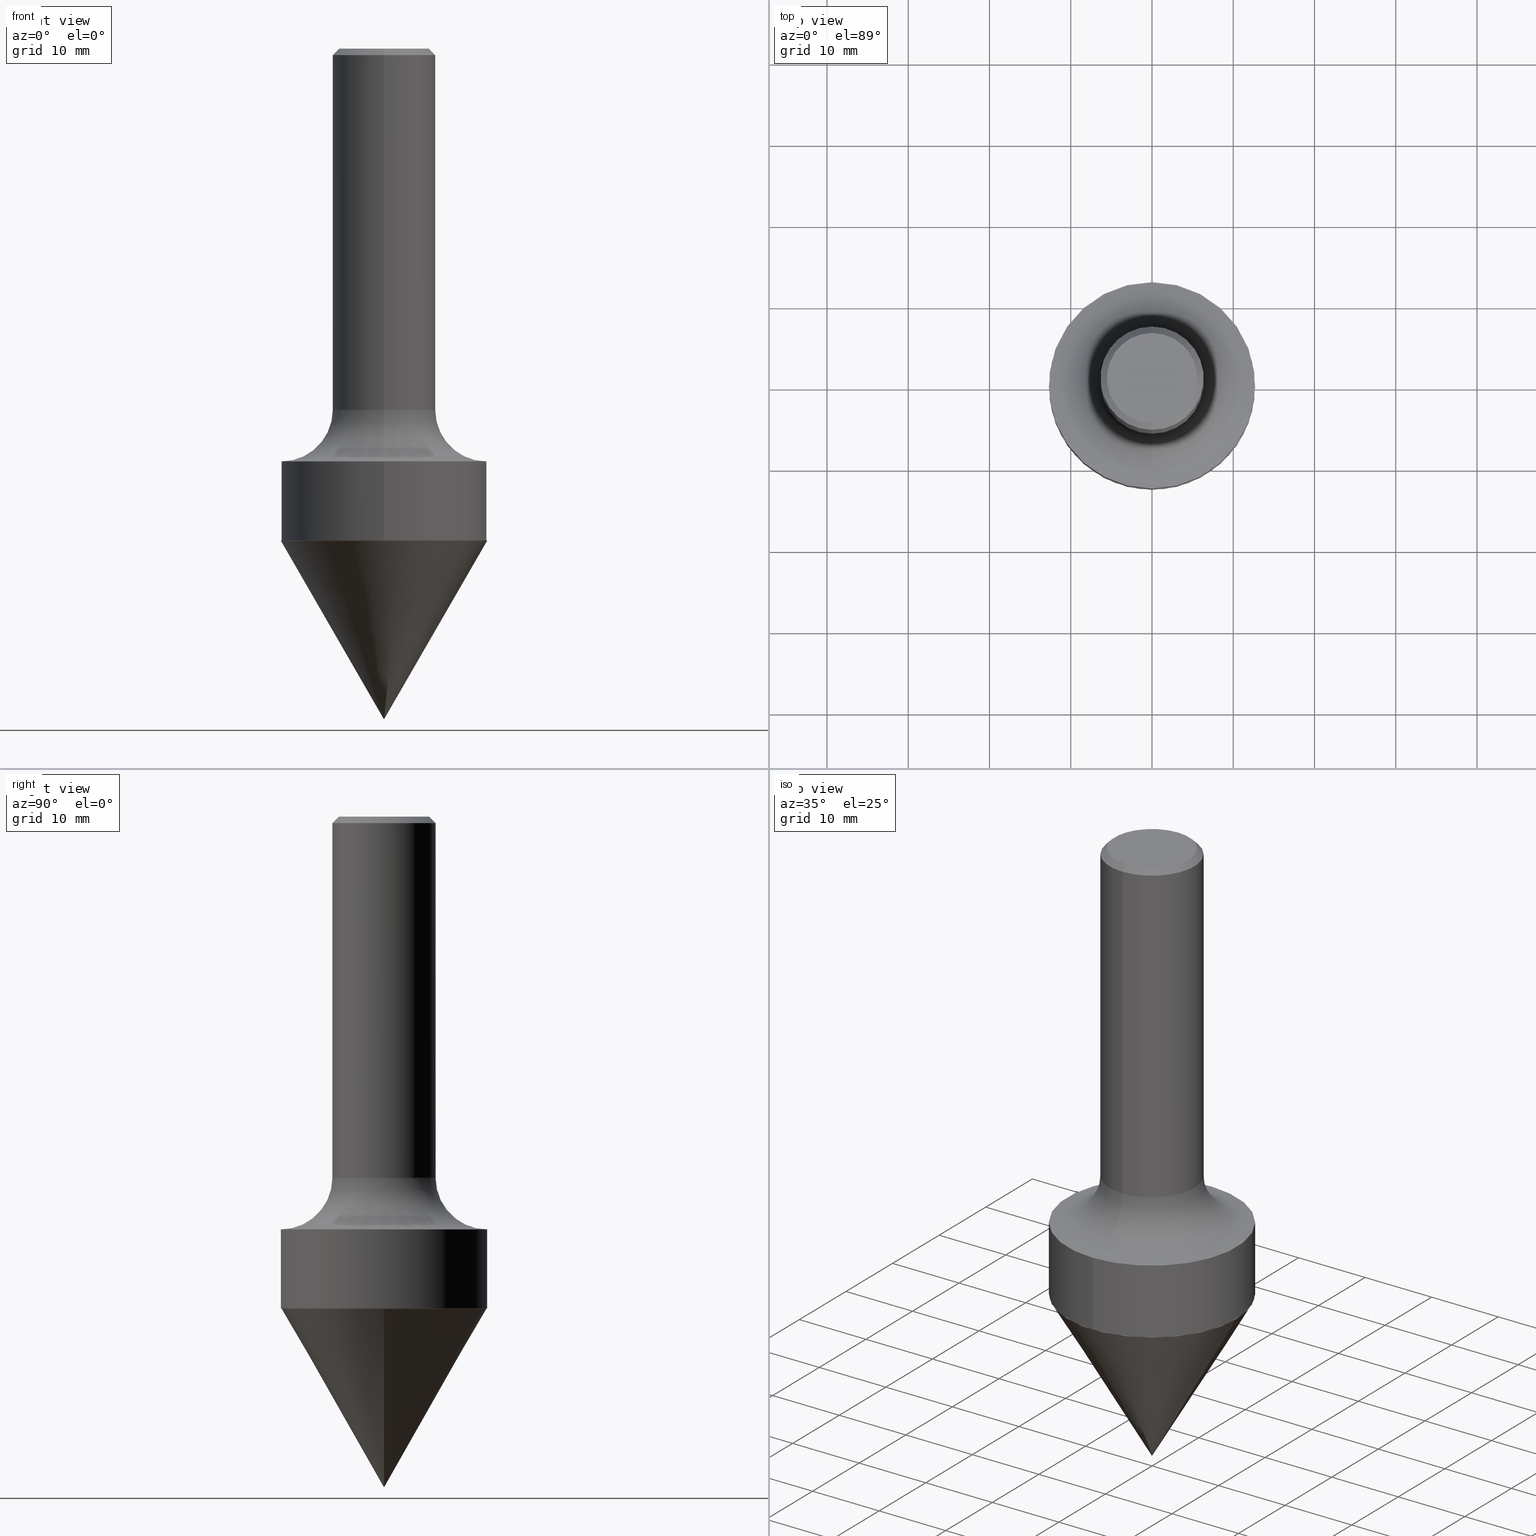
[diagram: canonical four-view strip — front | top / right | iso, engineering-drawing reading convention]
A machine part, canonical four-view strip (front | top / right | iso — engineering-drawing reading convention). The complete STEP part file that produces these views, byte-faithful:
ISO-10303-21;
HEADER;
FILE_DESCRIPTION (( 'STEP AP203' ),
    '1' );
FILE_NAME ('74022.STEP',
    '2024-03-01T13:00:24',
    ( '' ),
    ( '' ),
    'SwSTEP 2.0',
    'SolidWorks 2023',
    '' );
FILE_SCHEMA (( 'CONFIG_CONTROL_DESIGN' ));
ENDSEC;

DATA;
#1 = ORIENTED_EDGE ( 'NONE', *, *, #42, .T. ) ;
#2 = EDGE_CURVE ( 'NONE', #27, #328, #186, .T. ) ;
#3 = DATE_TIME_ROLE ( 'creation_date' ) ;
#4 = CARTESIAN_POINT ( 'NONE',  ( 3.549160965121756040E-15, 0.4994999999999913398, -2.383474596215558350 ) ) ;
#5 = CARTESIAN_POINT ( 'NONE',  ( -3.491481338843089179E-15, -0.5000000000000058842, -1.749999999999998890 ) ) ;
#6 = AXIS2_PLACEMENT_3D ( 'NONE', #378, #36, #453 ) ;
#7 = APPROVAL_ROLE ( '' ) ;
#8 = CONICAL_SURFACE ( 'NONE', #228, 0.4994999999999993889, 0.7853981633977213939 ) ;
#9 = DIRECTION ( 'NONE',  ( 1.000000000000000000, -6.982962677686268288E-15, 0.000000000000000000 ) ) ;
#10 = PERSON_AND_ORGANIZATION ( #142, #138 ) ;
#11 = ORIENTED_EDGE ( 'NONE', *, *, #332, .T. ) ;
#12 = DATE_TIME_ROLE ( 'classification_date' ) ;
#13 = ORIENTED_EDGE ( 'NONE', *, *, #54, .F. ) ;
#14 = CARTESIAN_POINT ( 'NONE',  ( 3.550937321961156489E-15, 0.4994999999999913398, -2.383474596215558350 ) ) ;
#15 = EDGE_CURVE ( 'NONE', #16, #353, #297, .T. ) ;
#16 = VERTEX_POINT ( 'NONE', #158 ) ;
#17 = AXIS2_PLACEMENT_3D ( 'NONE', #418, #339, #77 ) ;
#18 = CARTESIAN_POINT ( 'NONE',  ( 0.4994999999999993889, -1.175126381901434835E-14, -2.383474596215557018 ) ) ;
#19 = DIRECTION ( 'NONE',  ( -6.982962677686265922E-15, -1.000000000000000000, 3.518208477467953618E-15 ) ) ;
#20 = ORIENTED_EDGE ( 'NONE', *, *, #374, .T. ) ;
#21 = EDGE_CURVE ( 'NONE', #194, #415, #477, .T. ) ;
#22 = DIRECTION ( 'NONE',  ( 2.426805345035298041E-29, -3.518208477467954013E-15, -1.000000000000000000 ) ) ;
#23 = CARTESIAN_POINT ( 'NONE',  ( 5.828712775379859309E-29, -8.321857074293319895E-15, -2.383474596215557018 ) ) ;
#24 = LOCAL_TIME ( 8, 0, 24.00000000000000000, #79 ) ;
#25 = DIRECTION ( 'NONE',  ( -2.445468806185136597E-29, 3.491481338843145583E-15, 1.000000000000000000 ) ) ;
#26 = LINE ( 'NONE', #362, #484 ) ;
#27 = VERTEX_POINT ( 'NONE', #114 ) ;
#28 = CARTESIAN_POINT ( 'NONE',  ( 1.527872233877754946E-15, 0.2187999999999999945, -7.630330446570988685E-16 ) ) ;
#29 = ADVANCED_FACE ( 'NONE', ( #386 ), #268, .T. ) ;
#30 = CARTESIAN_POINT ( 'NONE',  ( -3.276658119362871831E-46, 4.750264126824306074E-32, 1.350194042577903107E-17 ) ) ;
#31 = VECTOR ( 'NONE', #152, 39.37007874015748143 ) ;
#32 = DIRECTION ( 'NONE',  ( -2.426805345035298041E-29, 3.518208477467954013E-15, 1.000000000000000000 ) ) ;
#33 = CARTESIAN_POINT ( 'NONE',  ( 5.829935509782950990E-29, -8.323602814962740609E-15, -2.383974596215557185 ) ) ;
#34 = DIRECTION ( 'NONE',  ( -6.982962677686265922E-15, -1.000000000000000000, 3.517254291842738968E-15 ) ) ;
#35 = EDGE_CURVE ( 'NONE', #492, #316, #49, .T. ) ;
#36 = DIRECTION ( 'NONE',  ( -2.426805345035298041E-29, 3.518208477467954013E-15, 1.000000000000000000 ) ) ;
#37 = CIRCLE ( 'NONE', #288, 0.4999999999999997224 ) ;
#38 = AXIS2_PLACEMENT_3D ( 'NONE', #214, #25, #177 ) ;
#39 = CARTESIAN_POINT ( 'NONE',  ( 0.000000000000000000, 0.000000000000000000, 0.000000000000000000 ) ) ;
#40 = ORIENTED_EDGE ( 'NONE', *, *, #486, .F. ) ;
#41 = CYLINDRICAL_SURFACE ( 'NONE', #200, 0.2500000000000001110 ) ;
#42 = EDGE_CURVE ( 'NONE', #204, #393, #74, .T. ) ;
#43 = ORIENTED_EDGE ( 'NONE', *, *, #387, .F. ) ;
#44 = PERSON_AND_ORGANIZATION_ROLE ( 'design_supplier' ) ;
#45 = DIRECTION ( 'NONE',  ( -4.851104656540946920E-15, -0.7071067811865474617, -0.7071067811865475727 ) ) ;
#46 = CARTESIAN_POINT ( 'NONE',  ( 5.784228889851762087E-29, -8.385560530235080975E-15, -2.383474596215557018 ) ) ;
#47 = VERTEX_POINT ( 'NONE', #417 ) ;
#48 = DIRECTION ( 'NONE',  ( 1.000000000000000000, -6.982962677686266711E-15, 0.000000000000000000 ) ) ;
#49 = CIRCLE ( 'NONE', #409, 0.4994999999999993889 ) ;
#50 = PERSON_AND_ORGANIZATION ( #142, #138 ) ;
#51 = CIRCLE ( 'NONE', #155, 0.2500000000000002220 ) ;
#52 = ORIENTED_EDGE ( 'NONE', *, *, #387, .T. ) ;
#53 = CALENDAR_DATE ( 2024, 1, 3 ) ;
#54 = EDGE_CURVE ( 'NONE', #194, #319, #80, .T. ) ;
#55 = TOROIDAL_SURFACE ( 'NONE', #379, 0.4999999999999997780, 0.2499999999999995282 ) ;
#56 = AXIS2_PLACEMENT_3D ( 'NONE', #23, #284, #481 ) ;
#57 = ORIENTED_EDGE ( 'NONE', *, *, #99, .F. ) ;
#58 = DIRECTION ( 'NONE',  ( 2.426805345035297761E-29, -3.518208477467954013E-15, -1.000000000000000000 ) ) ;
#59 = DIRECTION ( 'NONE',  ( -0.4999999999999976685, 6.576425215077956346E-15, 0.8660254037844400399 ) ) ;
#60 = CARTESIAN_POINT ( 'NONE',  ( -1.745740669421525460E-15, -0.2500000000000063283, -1.749999999999999556 ) ) ;
#61 = AXIS2_PLACEMENT_3D ( 'NONE', #39, #190, #491 ) ;
#62 = ORIENTED_EDGE ( 'NONE', *, *, #15, .F. ) ;
#63 = DIRECTION ( 'NONE',  ( -2.426805345035298041E-29, 3.518208477467954013E-15, 1.000000000000000000 ) ) ;
#64 = ADVANCED_FACE ( 'NONE', ( #302 ), #55, .F. ) ;
#65 = DIRECTION ( 'NONE',  ( 2.445468806185136597E-29, -3.491481338843145583E-15, -1.000000000000000000 ) ) ;
#66 = AXIS2_PLACEMENT_3D ( 'NONE', #361, #133, #318 ) ;
#67 = LOCAL_TIME ( 8, 0, 24.00000000000000000, #119 ) ;
#68 = DIRECTION ( 'NONE',  ( 1.000000000000000000, -6.982962677686268288E-15, 0.000000000000000000 ) ) ;
#69 = ORIENTED_EDGE ( 'NONE', *, *, #2, .F. ) ;
#70 = EDGE_CURVE ( 'NONE', #415, #194, #166, .T. ) ;
#71 =( LENGTH_UNIT ( ) NAMED_UNIT ( * ) SI_UNIT ( $, .METRE. ) );
#72 = ORIENTED_EDGE ( 'NONE', *, *, #126, .T. ) ;
#73 = DIRECTION ( 'NONE',  ( -6.982962677686265133E-15, -1.000000000000000000, 3.278217592397113101E-15 ) ) ;
#74 = LINE ( 'NONE', #300, #321 ) ;
#75 = APPROVAL ( #157, 'UNSPECIFIED' ) ;
#76 = CONICAL_SURFACE ( 'NONE', #312, 0.4999999999999996114, 0.5235987755982961511 ) ;
#77 = DIRECTION ( 'NONE',  ( -6.982962677686265922E-15, -1.000000000000000000, 3.281499091488606108E-15 ) ) ;
#78 = ORIENTED_EDGE ( 'NONE', *, *, #90, .F. ) ;
#79 = COORDINATED_UNIVERSAL_TIME_OFFSET ( 5, 0, .BEHIND. ) ;
#80 = LINE ( 'NONE', #4, #31 ) ;
#81 = FACE_OUTER_BOUND ( 'NONE', #406, .T. ) ;
#82 = APPLICATION_PROTOCOL_DEFINITION ( 'international standard', 'config_control_design', 1994, #171 ) ;
#83 = ORIENTED_EDGE ( 'NONE', *, *, #422, .F. ) ;
#84 = CALENDAR_DATE ( 2024, 1, 3 ) ;
#85 = ORIENTED_EDGE ( 'NONE', *, *, #90, .T. ) ;
#86 = VECTOR ( 'NONE', #231, 39.37007874015748143 ) ;
#87 = AXIS2_PLACEMENT_3D ( 'NONE', #287, #439, #217 ) ;
#88 = ADVANCED_FACE ( 'NONE', ( #81 ), #41, .T. ) ;
#89 = COORDINATED_UNIVERSAL_TIME_OFFSET ( 5, 0, .BEHIND. ) ;
#90 = EDGE_CURVE ( 'NONE', #316, #492, #466, .T. ) ;
#91 = CIRCLE ( 'NONE', #303, 0.2499999999999994449 ) ;
#92 = LINE ( 'NONE', #95, #440 ) ;
#93 = CIRCLE ( 'NONE', #488, 0.2500000000000000000 ) ;
#94 = ORIENTED_EDGE ( 'NONE', *, *, #176, .F. ) ;
#95 = CARTESIAN_POINT ( 'NONE',  ( 3.552713678800498563E-15, 0.4999999999999997224, -1.759104238733976217E-15 ) ) ;
#96 = DIRECTION ( 'NONE',  ( -2.445468806185136597E-29, 3.491481338843145583E-15, 1.000000000000000000 ) ) ;
#97 = PLANE ( 'NONE',  #356 ) ;
#98 = MANIFOLD_SOLID_BREP ( 'Body-Move/Copy2[2]', #110 ) ;
#99 = EDGE_CURVE ( 'NONE', #311, #393, #237, .T. ) ;
#100 = CARTESIAN_POINT ( 'NONE',  ( -0.4999999999999996114, -4.832121476119610410E-15, -2.383974596215557185 ) ) ;
#101 = VECTOR ( 'NONE', #334, 39.37007874015748143 ) ;
#102 = CC_DESIGN_SECURITY_CLASSIFICATION ( #253, ( #322 ) ) ;
#103 = CARTESIAN_POINT ( 'NONE',  ( 5.783015487179245881E-29, -8.383801425996346326E-15, -2.382974596215556851 ) ) ;
#104 = DIRECTION ( 'NONE',  ( -6.982962677686265922E-15, -1.000000000000000000, 3.518208477467954013E-15 ) ) ;
#105 = CARTESIAN_POINT ( 'NONE',  ( -0.4994999999999993889, -4.833867216789033491E-15, -2.383474596215557018 ) ) ;
#106 = PRODUCT_DEFINITION ( 'UNKNOWN', '', #322, #469 ) ;
#107 = PLANE ( 'NONE',  #391 ) ;
#108 = EDGE_LOOP ( 'NONE', ( #78, #52, #273, #414 ) ) ;
#109 =( NAMED_UNIT ( * ) PLANE_ANGLE_UNIT ( ) SI_UNIT ( $, .RADIAN. ) );
#110 = CLOSED_SHELL ( 'NONE', ( #88, #261, #116, #289, #310, #64, #269, #352, #232, #248, #225, #189 ) ) ;
#111 = APPROVAL_PERSON_ORGANIZATION ( #165, #367, #125 ) ;
#112 = DIRECTION ( 'NONE',  ( -6.982962677686265133E-15, -1.000000000000000000, 3.278217592397113101E-15 ) ) ;
#113 = DIRECTION ( 'NONE',  ( -6.982962677686265922E-15, -1.000000000000000000, 3.518208477467953618E-15 ) ) ;
#114 = CARTESIAN_POINT ( 'NONE',  ( 2.664535259100420662E-15, 0.2499999999999940603, -1.750000000000001332 ) ) ;
#115 = DIRECTION ( 'NONE',  ( -2.426805345035298041E-29, 3.518208477467954013E-15, 1.000000000000000000 ) ) ;
#116 = ADVANCED_FACE ( 'NONE', ( #383 ), #212, .T. ) ;
#117 = EDGE_LOOP ( 'NONE', ( #360, #396, #168 ) ) ;
#118 = VECTOR ( 'NONE', #122, 39.37007874015748143 ) ;
#119 = COORDINATED_UNIVERSAL_TIME_OFFSET ( 5, 0, .BEHIND. ) ;
#120 = ORIENTED_EDGE ( 'NONE', *, *, #357, .T. ) ;
#121 = DATE_AND_TIME ( #199, #67 ) ;
#122 = DIRECTION ( 'NONE',  ( -4.937700262164884886E-15, -0.7071067811865933139, 0.7071067811865017205 ) ) ;
#123 = APPROVAL_ROLE ( '' ) ;
#124 = ORIENTED_EDGE ( 'NONE', *, *, #399, .F. ) ;
#125 = APPROVAL_ROLE ( '' ) ;
#126 = EDGE_CURVE ( 'NONE', #311, #353, #434, .T. ) ;
#127 = ORIENTED_EDGE ( 'NONE', *, *, #444, .T. ) ;
#128 = DIRECTION ( 'NONE',  ( -2.426805345035298041E-29, 3.518208477467954013E-15, 1.000000000000000000 ) ) ;
#129 = EDGE_CURVE ( 'NONE', #415, #16, #421, .T. ) ;
#130 = EDGE_LOOP ( 'NONE', ( #252, #235, #202, #458 ) ) ;
#131 = DIRECTION ( 'NONE',  ( -6.982962677686265922E-15, -1.000000000000000000, 3.518208477467954407E-15 ) ) ;
#132 = FACE_OUTER_BOUND ( 'NONE', #135, .T. ) ;
#133 = DIRECTION ( 'NONE',  ( -2.426805345035298041E-29, 3.518208477467954013E-15, 1.000000000000000000 ) ) ;
#134 = CC_DESIGN_PERSON_AND_ORGANIZATION_ASSIGNMENT ( #50, #416, ( #322 ) ) ;
#135 = EDGE_LOOP ( 'NONE', ( #373, #309 ) ) ;
#136 = FACE_OUTER_BOUND ( 'NONE', #163, .T. ) ;
#137 = FACE_OUTER_BOUND ( 'NONE', #465, .T. ) ;
#138 = ORGANIZATION ( 'UNSPECIFIED', 'UNSPECIFIED', '' ) ;
#139 = DIRECTION ( 'NONE',  ( -2.426805345035298041E-29, 3.518208477467954013E-15, 1.000000000000000000 ) ) ;
#140 = CC_DESIGN_PERSON_AND_ORGANIZATION_ASSIGNMENT ( #381, #44, ( #322 ) ) ;
#141 = CARTESIAN_POINT ( 'NONE',  ( 7.571632676510179353E-31, -1.097681044970008795E-16, -0.03120000000000020327 ) ) ;
#142 = PERSON ( 'UNSPECIFIED', 'UNSPECIFIED', 'UNSPECIFIED', ('UNSPECIFIED'), ('UNSPECIFIED'), ('UNSPECIFIED') ) ;
#143 = CARTESIAN_POINT ( 'NONE',  ( -1.608100730677646216E-15, -0.2187999999999999945, 7.832859552957674143E-16 ) ) ;
#144 = CARTESIAN_POINT ( 'NONE',  ( 4.246909353811772973E-29, -6.156864835568921297E-15, -1.750000000000000444 ) ) ;
#145 = CARTESIAN_POINT ( 'NONE',  ( 1.776356839400250859E-15, 0.2500000000000001110, -8.795521193669887990E-16 ) ) ;
#146 = DIRECTION ( 'NONE',  ( -2.426805345035298041E-29, 3.518208477467954013E-15, 1.000000000000000000 ) ) ;
#147 = ADVANCED_FACE ( 'NONE', ( #161 ), #107, .F. ) ;
#148 = CARTESIAN_POINT ( 'NONE',  ( -3.491481338843082868E-15, -0.5000000000000067724, -1.999999999999998446 ) ) ;
#149 = DIRECTION ( 'NONE',  ( -2.426805345035298041E-29, 3.518208477467954013E-15, 1.000000000000000000 ) ) ;
#150 = EDGE_LOOP ( 'NONE', ( #429, #40, #338, #20 ) ) ;
#151 = COORDINATED_UNIVERSAL_TIME_OFFSET ( 5, 0, .BEHIND. ) ;
#152 = DIRECTION ( 'NONE',  ( 5.024295867788404755E-15, 0.7071067811865981989, 0.7071067811864968355 ) ) ;
#153 = AXIS2_PLACEMENT_3D ( 'NONE', #325, #172, #358 ) ;
#154 = DIRECTION ( 'NONE',  ( -1.000000000000000000, 6.982962677686265922E-15, -4.883557194083112340E-29 ) ) ;
#155 = AXIS2_PLACEMENT_3D ( 'NONE', #371, #139, #112 ) ;
#156 = ADVANCED_BREP_SHAPE_REPRESENTATION ( '74022', ( #426, #98, #61 ), #260 ) ;
#157 = APPROVAL_STATUS ( 'not_yet_approved' ) ;
#158 = CARTESIAN_POINT ( 'NONE',  ( -3.491481338843073402E-15, -0.5000000000000081046, -2.382974596215555518 ) ) ;
#159 = DATE_AND_TIME ( #53, #375 ) ;
#160 = EDGE_CURVE ( 'NONE', #319, #16, #37, .T. ) ;
#161 = FACE_OUTER_BOUND ( 'NONE', #277, .T. ) ;
#162 = EDGE_LOOP ( 'NONE', ( #380, #368, #351, #62 ) ) ;
#163 = EDGE_LOOP ( 'NONE', ( #13, #355, #227, #198 ) ) ;
#164 = ORIENTED_EDGE ( 'NONE', *, *, #196, .T. ) ;
#165 = PERSON_AND_ORGANIZATION ( #142, #138 ) ;
#166 = CIRCLE ( 'NONE', #17, 0.4994999999999997775 ) ;
#167 = AXIS2_PLACEMENT_3D ( 'NONE', #30, #333, #104 ) ;
#168 = ORIENTED_EDGE ( 'NONE', *, *, #332, .F. ) ;
#169 = DIRECTION ( 'NONE',  ( 6.982962677686265922E-15, 1.000000000000000000, -3.518208477467954013E-15 ) ) ;
#170 = ORIENTED_EDGE ( 'NONE', *, *, #482, .F. ) ;
#171 = APPLICATION_CONTEXT ( 'configuration controlled 3d designs of mechanical parts and assemblies' ) ;
#172 = DIRECTION ( 'NONE',  ( -2.426805345035297761E-29, 3.518208477467954013E-15, 1.000000000000000000 ) ) ;
#173 = AXIS2_PLACEMENT_3D ( 'NONE', #320, #403, #131 ) ;
#174 = FACE_OUTER_BOUND ( 'NONE', #420, .T. ) ;
#175 = CC_DESIGN_APPROVAL ( #367, ( #253 ) ) ;
#176 = EDGE_CURVE ( 'NONE', #246, #226, #401, .T. ) ;
#177 = DIRECTION ( 'NONE',  ( 1.000000000000000000, -6.982962677686268288E-15, 0.000000000000000000 ) ) ;
#178 = CARTESIAN_POINT ( 'NONE',  ( 7.571632676510179353E-31, -1.097681044970008795E-16, -0.03120000000000020327 ) ) ;
#179 = ORIENTED_EDGE ( 'NONE', *, *, #482, .T. ) ;
#180 = ADVANCED_FACE ( 'NONE', ( #222 ), #76, .T. ) ;
#181 = CIRCLE ( 'NONE', #38, 0.4999999999999996114 ) ;
#182 = DIRECTION ( 'NONE',  ( 2.438088387897960049E-29, -3.491481338843145188E-15, -1.000000000000000000 ) ) ;
#183 = DIRECTION ( 'NONE',  ( 4.937700262164529898E-15, 0.7071067811865425767, -0.7071067811865524577 ) ) ;
#184 = FACE_OUTER_BOUND ( 'NONE', #108, .T. ) ;
#185 = APPLICATION_PROTOCOL_DEFINITION ( 'international standard', 'config_control_design', 1994, #471 ) ;
#186 = LINE ( 'NONE', #145, #327 ) ;
#187 = AXIS2_PLACEMENT_3D ( 'NONE', #290, #476, #443 ) ;
#188 = VECTOR ( 'NONE', #445, 39.37007874015748143 ) ;
#189 = ADVANCED_FACE ( 'NONE', ( #363 ), #354, .T. ) ;
#190 = DIRECTION ( 'NONE',  ( 0.000000000000000000, 0.000000000000000000, 1.000000000000000000 ) ) ;
#191 = EDGE_LOOP ( 'NONE', ( #345, #463, #286, #424 ) ) ;
#192 = DIRECTION ( 'NONE',  ( -6.982962677686265922E-15, -1.000000000000000000, 3.518208477467953618E-15 ) ) ;
#193 = SECURITY_CLASSIFICATION_LEVEL ( 'unclassified' ) ;
#194 = VERTEX_POINT ( 'NONE', #14 ) ;
#195 = DIRECTION ( 'NONE',  ( -2.426805345035298041E-29, 3.518208477467954013E-15, 1.000000000000000000 ) ) ;
#196 = EDGE_CURVE ( 'NONE', #492, #226, #468, .T. ) ;
#197 = PERSON_AND_ORGANIZATION_ROLE ( 'creator' ) ;
#198 = ORIENTED_EDGE ( 'NONE', *, *, #160, .F. ) ;
#199 = CALENDAR_DATE ( 2024, 1, 3 ) ;
#200 = AXIS2_PLACEMENT_3D ( 'NONE', #203, #305, #192 ) ;
#201 = APPROVAL_STATUS ( 'not_yet_approved' ) ;
#202 = ORIENTED_EDGE ( 'NONE', *, *, #298, .F. ) ;
#203 = CARTESIAN_POINT ( 'NONE',  ( 0.000000000000000000, 0.000000000000000000, 0.000000000000000000 ) ) ;
#204 = VERTEX_POINT ( 'NONE', #143 ) ;
#205 = ORIENTED_EDGE ( 'NONE', *, *, #281, .T. ) ;
#206 = EDGE_CURVE ( 'NONE', #239, #226, #26, .T. ) ;
#207 = CARTESIAN_POINT ( 'NONE',  ( 4.231879429371815934E-29, -6.178388542817113076E-15, -1.750000000000000444 ) ) ;
#208 = ORIENTED_EDGE ( 'NONE', *, *, #206, .T. ) ;
#209 = FACE_OUTER_BOUND ( 'NONE', #191, .T. ) ;
#210 = EDGE_CURVE ( 'NONE', #319, #470, #92, .T. ) ;
#211 = CARTESIAN_POINT ( 'NONE',  ( 0.4999999999999996114, -1.175385181384850324E-14, -2.383974596215557185 ) ) ;
#212 = CONICAL_SURFACE ( 'NONE', #448, 0.4994999999999997775, 0.7853981633975165577 ) ;
#213 = AXIS2_PLACEMENT_3D ( 'NONE', #207, #285, #438 ) ;
#214 = CARTESIAN_POINT ( 'NONE',  ( 5.829935509782950990E-29, -8.323602814962740609E-15, -2.383974596215557185 ) ) ;
#215 = DIRECTION ( 'NONE',  ( 6.982962677686265922E-15, 1.000000000000000000, -3.517254291842738968E-15 ) ) ;
#216 = EDGE_CURVE ( 'NONE', #27, #470, #91, .T. ) ;
#217 = DIRECTION ( 'NONE',  ( -6.982962677686265922E-15, -1.000000000000000000, 3.281499091488606108E-15 ) ) ;
#218 = ORIENTED_EDGE ( 'NONE', *, *, #21, .F. ) ;
#219 = LINE ( 'NONE', #376, #441 ) ;
#220 = CIRCLE ( 'NONE', #66, 0.4999999999999997224 ) ;
#221 = LOCAL_TIME ( 8, 0, 24.00000000000000000, #301 ) ;
#222 = FACE_OUTER_BOUND ( 'NONE', #341, .T. ) ;
#223 =( NAMED_UNIT ( * ) SI_UNIT ( $, .STERADIAN. ) SOLID_ANGLE_UNIT ( ) );
#224 = CARTESIAN_POINT ( 'NONE',  ( -0.4994999999999993889, -4.832994346454322345E-15, -2.383474596215557018 ) ) ;
#225 = ADVANCED_FACE ( 'NONE', ( #473 ), #372, .T. ) ;
#226 = VERTEX_POINT ( 'NONE', #100 ) ;
#227 = ORIENTED_EDGE ( 'NONE', *, *, #129, .T. ) ;
#228 = AXIS2_PLACEMENT_3D ( 'NONE', #330, #65, #447 ) ;
#229 = MECHANICAL_CONTEXT ( 'NONE', #471, 'mechanical' ) ;
#230 = CARTESIAN_POINT ( 'NONE',  ( -3.491481338843130989E-15, -0.4999999999999997224, 1.759104238733976217E-15 ) ) ;
#231 = DIRECTION ( 'NONE',  ( -2.426805345035298041E-29, 3.518208477467954013E-15, 1.000000000000000000 ) ) ;
#232 = ADVANCED_FACE ( 'NONE', ( #247 ), #480, .F. ) ;
#233 = ORIENTED_EDGE ( 'NONE', *, *, #374, .F. ) ;
#234 = CALENDAR_DATE ( 2024, 1, 3 ) ;
#235 = ORIENTED_EDGE ( 'NONE', *, *, #54, .T. ) ;
#236 = APPROVAL_DATE_TIME ( #159, #367 ) ;
#237 = LINE ( 'NONE', #263, #86 ) ;
#238 = DATE_AND_TIME ( #84, #402 ) ;
#239 = VERTEX_POINT ( 'NONE', #433 ) ;
#240 = DIMENSIONAL_EXPONENTS ( 1.000000000000000000, 0.000000000000000000, 0.000000000000000000, 0.000000000000000000, 0.000000000000000000, 0.000000000000000000, 0.000000000000000000 ) ;
#241 = ORIENTED_EDGE ( 'NONE', *, *, #216, .F. ) ;
#242 = EDGE_LOOP ( 'NONE', ( #331, #1, #464, #446 ) ) ;
#243 = ORIENTED_EDGE ( 'NONE', *, *, #126, .F. ) ;
#244 = CLOSED_SHELL ( 'NONE', ( #180, #437, #294, #29, #147 ) ) ;
#245 = CIRCLE ( 'NONE', #410, 0.2187999999999999945 ) ;
#246 = VERTEX_POINT ( 'NONE', #211 ) ;
#247 = FACE_OUTER_BOUND ( 'NONE', #314, .T. ) ;
#248 = ADVANCED_FACE ( 'NONE', ( #132 ), #97, .F. ) ;
#249 = CARTESIAN_POINT ( 'NONE',  ( 1.745740669421567269E-15, 0.2499999999999998890, -0.03120000000000108104 ) ) ;
#250 = CARTESIAN_POINT ( 'NONE',  ( 7.571632676510179353E-31, -1.097681044970008795E-16, -0.03120000000000020327 ) ) ;
#251 = VECTOR ( 'NONE', #348, 39.37007874015748143 ) ;
#252 = ORIENTED_EDGE ( 'NONE', *, *, #70, .T. ) ;
#253 = SECURITY_CLASSIFICATION ( '', '', #193 ) ;
#254 = DIRECTION ( 'NONE',  ( 1.000000000000000000, -7.105427357601001070E-15, 4.926642821589754317E-29 ) ) ;
#255 = CYLINDRICAL_SURFACE ( 'NONE', #173, 0.4999999999999997224 ) ;
#256 = DIRECTION ( 'NONE',  ( -2.426805345035298041E-29, 3.518208477467954013E-15, 1.000000000000000000 ) ) ;
#257 = DIRECTION ( 'NONE',  ( -1.000000000000000000, 6.982962677686265922E-15, -4.876176775795935793E-29 ) ) ;
#258 = CARTESIAN_POINT ( 'NONE',  ( -3.487989857504230395E-15, -0.4995000000000081597, -2.383474596215555241 ) ) ;
#259 = AXIS2_PLACEMENT_3D ( 'NONE', #5, #154, #274 ) ;
#260 =( GEOMETRIC_REPRESENTATION_CONTEXT ( 3 ) GLOBAL_UNCERTAINTY_ASSIGNED_CONTEXT ( ( #474 ) ) GLOBAL_UNIT_ASSIGNED_CONTEXT ( ( #412, #109, #223 ) ) REPRESENTATION_CONTEXT ( 'NONE', 'WORKASPACE' ) );
#261 = ADVANCED_FACE ( 'NONE', ( #324 ), #282, .T. ) ;
#262 = CARTESIAN_POINT ( 'NONE',  ( 4.853610690070596082E-29, -7.036416954935907236E-15, -2.000000000000000000 ) ) ;
#263 = CARTESIAN_POINT ( 'NONE',  ( -1.745740669421567269E-15, -0.2500000000000001110, 8.795521193669887990E-16 ) ) ;
#264 = CARTESIAN_POINT ( 'NONE',  ( 0.4994999999999993889, -1.174867582418019504E-14, -2.383474596215557018 ) ) ;
#265 = DIRECTION ( 'NONE',  ( -2.445468806185136597E-29, 3.491481338843145583E-15, 1.000000000000000000 ) ) ;
#266 = DIRECTION ( 'NONE',  ( -2.426805345035298041E-29, 3.518208477467954013E-15, 1.000000000000000000 ) ) ;
#267 = DIRECTION ( 'NONE',  ( -2.445468806185136597E-29, 3.491481338843145583E-15, 1.000000000000000000 ) ) ;
#268 = CONICAL_SURFACE ( 'NONE', #425, 0.4999999999999996114, 0.5235987755982961511 ) ;
#269 = ADVANCED_FACE ( 'NONE', ( #209 ), #255, .T. ) ;
#270 = CONICAL_SURFACE ( 'NONE', #56, 0.4994999999999993889, 0.7853981633977213939 ) ;
#271 = EDGE_LOOP ( 'NONE', ( #241, #394, #72, #120 ) ) ;
#272 = DATE_AND_TIME ( #275, #221 ) ;
#273 = ORIENTED_EDGE ( 'NONE', *, *, #176, .T. ) ;
#274 = DIRECTION ( 'NONE',  ( -6.982962677686269077E-15, -1.000000000000000000, 0.000000000000000000 ) ) ;
#275 = CALENDAR_DATE ( 2024, 1, 3 ) ;
#276 = ORIENTED_EDGE ( 'NONE', *, *, #70, .F. ) ;
#277 = EDGE_LOOP ( 'NONE', ( #461, #85 ) ) ;
#278 = TOROIDAL_SURFACE ( 'NONE', #213, 0.4999999999999997780, 0.2499999999999995282 ) ;
#279 = PRODUCT_RELATED_PRODUCT_CATEGORY ( 'detail', '', ( #340 ) ) ;
#280 = CARTESIAN_POINT ( 'NONE',  ( 3.552713678800551416E-15, 0.4999999999999913403, -2.382974596215558627 ) ) ;
#281 = EDGE_CURVE ( 'NONE', #470, #353, #220, .T. ) ;
#282 = CONICAL_SURFACE ( 'NONE', #335, 0.2500000000000000000, 0.7853981633974447263 ) ;
#283 = CONICAL_SURFACE ( 'NONE', #87, 0.4994999999999997775, 0.7853981633975165577 ) ;
#284 = DIRECTION ( 'NONE',  ( 2.445468806185136597E-29, -3.491481338843145583E-15, -1.000000000000000000 ) ) ;
#285 = DIRECTION ( 'NONE',  ( -2.426805345035298041E-29, 3.518208477467954013E-15, 1.000000000000000000 ) ) ;
#286 = ORIENTED_EDGE ( 'NONE', *, *, #15, .T. ) ;
#287 = CARTESIAN_POINT ( 'NONE',  ( 5.784228889851762087E-29, -8.385560530235080975E-15, -2.383474596215557018 ) ) ;
#288 = AXIS2_PLACEMENT_3D ( 'NONE', #370, #326, #292 ) ;
#289 = ADVANCED_FACE ( 'NONE', ( #436 ), #483, .T. ) ;
#290 = CARTESIAN_POINT ( 'NONE',  ( 0.000000000000000000, 0.000000000000000000, 0.000000000000000000 ) ) ;
#291 = CARTESIAN_POINT ( 'NONE',  ( -3.276658119362871831E-46, 4.750264126824306074E-32, 1.350194042577903107E-17 ) ) ;
#292 = DIRECTION ( 'NONE',  ( -6.982962677686265922E-15, -1.000000000000000000, 3.278217592397117834E-15 ) ) ;
#293 = DIRECTION ( 'NONE',  ( -6.982962677686265922E-15, -1.000000000000000000, 3.517254291842738968E-15 ) ) ;
#294 = ADVANCED_FACE ( 'NONE', ( #137 ), #270, .T. ) ;
#295 = AXIS2_PLACEMENT_3D ( 'NONE', #452, #266, #293 ) ;
#296 = DIRECTION ( 'NONE',  ( -6.982962677686265922E-15, -1.000000000000000000, 3.518208477467954013E-15 ) ) ;
#297 = LINE ( 'NONE', #230, #251 ) ;
#298 = EDGE_CURVE ( 'NONE', #16, #319, #479, .T. ) ;
#299 = DIRECTION ( 'NONE',  ( -2.426805345035298041E-29, 3.518208477467954013E-15, 1.000000000000000000 ) ) ;
#300 = CARTESIAN_POINT ( 'NONE',  ( -1.715124499442881905E-15, -0.2500000000000001110, -0.03119999999999932203 ) ) ;
#301 = COORDINATED_UNIVERSAL_TIME_OFFSET ( 5, 0, .BEHIND. ) ;
#302 = FACE_OUTER_BOUND ( 'NONE', #271, .T. ) ;
#303 = AXIS2_PLACEMENT_3D ( 'NONE', #398, #254, #369 ) ;
#304 = APPROVAL_PERSON_ORGANIZATION ( #350, #432, #123 ) ;
#305 = DIRECTION ( 'NONE',  ( -2.426805345035298041E-29, 3.518208477467954013E-15, 1.000000000000000000 ) ) ;
#306 = PERSON_AND_ORGANIZATION_ROLE ( 'design_owner' ) ;
#307 = CARTESIAN_POINT ( 'NONE',  ( 5.828712775379859309E-29, -8.321857074293319895E-15, -2.383474596215557018 ) ) ;
#308 = CARTESIAN_POINT ( 'NONE',  ( 4.231879429371815934E-29, -6.178388542817113076E-15, -1.750000000000000444 ) ) ;
#309 = ORIENTED_EDGE ( 'NONE', *, *, #472, .T. ) ;
#310 = ADVANCED_FACE ( 'NONE', ( #174 ), #278, .F. ) ;
#311 = VERTEX_POINT ( 'NONE', #60 ) ;
#312 = AXIS2_PLACEMENT_3D ( 'NONE', #33, #96, #430 ) ;
#313 = CC_DESIGN_APPROVAL ( #75, ( #322 ) ) ;
#314 = EDGE_LOOP ( 'NONE', ( #276, #218 ) ) ;
#315 = SHAPE_DEFINITION_REPRESENTATION ( #455, #156 ) ;
#316 = VERTEX_POINT ( 'NONE', #18 ) ;
#317 = CC_DESIGN_PERSON_AND_ORGANIZATION_ASSIGNMENT ( #10, #197, ( #106 ) ) ;
#318 = DIRECTION ( 'NONE',  ( -6.982962677686265922E-15, -1.000000000000000000, 3.278217592397117834E-15 ) ) ;
#319 = VERTEX_POINT ( 'NONE', #280 ) ;
#320 = CARTESIAN_POINT ( 'NONE',  ( 0.000000000000000000, 0.000000000000000000, 0.000000000000000000 ) ) ;
#321 = VECTOR ( 'NONE', #45, 39.37007874015748143 ) ;
#322 = PRODUCT_DEFINITION_FORMATION_WITH_SPECIFIED_SOURCE ( 'ANY', '', #340, .NOT_KNOWN. ) ;
#323 = DIRECTION ( 'NONE',  ( -2.426805345035298041E-29, 3.518208477467954013E-15, 1.000000000000000000 ) ) ;
#324 = FACE_OUTER_BOUND ( 'NONE', #242, .T. ) ;
#325 = CARTESIAN_POINT ( 'NONE',  ( 3.487989857504345963E-15, 0.4994999999999913398, -2.383474596215558350 ) ) ;
#326 = DIRECTION ( 'NONE',  ( -2.426805345035298041E-29, 3.518208477467954013E-15, 1.000000000000000000 ) ) ;
#327 = VECTOR ( 'NONE', #149, 39.37007874015748143 ) ;
#328 = VERTEX_POINT ( 'NONE', #249 ) ;
#329 = AXIS2_PLACEMENT_3D ( 'NONE', #103, #63, #366 ) ;
#330 = CARTESIAN_POINT ( 'NONE',  ( 5.828712775379859309E-29, -8.321857074293319895E-15, -2.383474596215557018 ) ) ;
#331 = ORIENTED_EDGE ( 'NONE', *, *, #472, .F. ) ;
#332 = EDGE_CURVE ( 'NONE', #226, #246, #181, .T. ) ;
#333 = DIRECTION ( 'NONE',  ( -2.426805345035298041E-29, 3.518208477467954013E-15, 1.000000000000000000 ) ) ;
#334 = DIRECTION ( 'NONE',  ( -0.7071067811867406405, 2.468850131084279700E-15, -0.7071067811863543939 ) ) ;
#335 = AXIS2_PLACEMENT_3D ( 'NONE', #178, #22, #397 ) ;
#336 = CARTESIAN_POINT ( 'NONE',  ( 0.4999999999999996114, -1.181508415380587239E-14, -2.383974596215557185 ) ) ;
#337 = APPROVAL_PERSON_ORGANIZATION ( #347, #75, #7 ) ;
#338 = ORIENTED_EDGE ( 'NONE', *, *, #478, .T. ) ;
#339 = DIRECTION ( 'NONE',  ( -2.426805345035298041E-29, 3.518208477467954013E-15, 1.000000000000000000 ) ) ;
#340 = PRODUCT ( '74022', '74022', '', ( #229 ) ) ;
#341 = EDGE_LOOP ( 'NONE', ( #124, #208, #94 ) ) ;
#342 = CARTESIAN_POINT ( 'NONE',  ( 5.828712775379859309E-29, -8.321857074293319895E-15, -2.383474596215557018 ) ) ;
#343 = ORIENTED_EDGE ( 'NONE', *, *, #2, .T. ) ;
#344 = PERSON_AND_ORGANIZATION ( #142, #138 ) ;
#345 = ORIENTED_EDGE ( 'NONE', *, *, #210, .F. ) ;
#346 = DIRECTION ( 'NONE',  ( -6.982962677686265922E-15, -1.000000000000000000, 3.281499091488606108E-15 ) ) ;
#347 = PERSON_AND_ORGANIZATION ( #142, #138 ) ;
#348 = DIRECTION ( 'NONE',  ( -2.426805345035298041E-29, 3.518208477467954013E-15, 1.000000000000000000 ) ) ;
#349 = AXIS2_PLACEMENT_3D ( 'NONE', #262, #115, #485 ) ;
#350 = PERSON_AND_ORGANIZATION ( #142, #138 ) ;
#351 = ORIENTED_EDGE ( 'NONE', *, *, #357, .F. ) ;
#352 = ADVANCED_FACE ( 'NONE', ( #136 ), #283, .T. ) ;
#353 = VERTEX_POINT ( 'NONE', #148 ) ;
#354 = CYLINDRICAL_SURFACE ( 'NONE', #457, 0.2500000000000001110 ) ;
#355 = ORIENTED_EDGE ( 'NONE', *, *, #21, .T. ) ;
#356 = AXIS2_PLACEMENT_3D ( 'NONE', #28, #58, #169 ) ;
#357 = EDGE_CURVE ( 'NONE', #353, #470, #460, .T. ) ;
#358 = DIRECTION ( 'NONE',  ( -6.982962677686265922E-15, -1.000000000000000000, 3.518208477467954013E-15 ) ) ;
#359 = CARTESIAN_POINT ( 'NONE',  ( 0.000000000000000000, 0.000000000000000000, 0.000000000000000000 ) ) ;
#360 = ORIENTED_EDGE ( 'NONE', *, *, #206, .F. ) ;
#361 = CARTESIAN_POINT ( 'NONE',  ( 4.853610690070596082E-29, -7.036416954935907236E-15, -2.000000000000000000 ) ) ;
#362 = CARTESIAN_POINT ( 'NONE',  ( -0.4999999999999996114, -4.770889136162242836E-15, -2.383974596215557185 ) ) ;
#363 = FACE_OUTER_BOUND ( 'NONE', #390, .T. ) ;
#364 = AXIS2_PLACEMENT_3D ( 'NONE', #442, #408, #68 ) ;
#365 = VECTOR ( 'NONE', #489, 39.37007874015748143 ) ;
#366 = DIRECTION ( 'NONE',  ( -6.982962677686265922E-15, -1.000000000000000000, 3.278217592397117834E-15 ) ) ;
#367 = APPROVAL ( #431, 'UNSPECIFIED' ) ;
#368 = ORIENTED_EDGE ( 'NONE', *, *, #210, .T. ) ;
#369 = DIRECTION ( 'NONE',  ( 7.105427357601001859E-15, 1.000000000000000000, 0.000000000000000000 ) ) ;
#370 = CARTESIAN_POINT ( 'NONE',  ( 5.783015487179245881E-29, -8.383801425996346326E-15, -2.382974596215556851 ) ) ;
#371 = CARTESIAN_POINT ( 'NONE',  ( 4.246909353811772973E-29, -6.156864835568921297E-15, -1.750000000000000444 ) ) ;
#372 = CONICAL_SURFACE ( 'NONE', #487, 0.2500000000000000000, 0.7853981633974447263 ) ;
#373 = ORIENTED_EDGE ( 'NONE', *, *, #486, .T. ) ;
#374 = EDGE_CURVE ( 'NONE', #328, #393, #93, .T. ) ;
#375 = LOCAL_TIME ( 8, 0, 24.00000000000000000, #89 ) ;
#376 = CARTESIAN_POINT ( 'NONE',  ( 1.745740669421567269E-15, 0.2499999999999998890, -0.03120000000000108104 ) ) ;
#377 = LINE ( 'NONE', #264, #365 ) ;
#378 = CARTESIAN_POINT ( 'NONE',  ( 5.784228889851762087E-29, -8.385560530235080975E-15, -2.383474596215557018 ) ) ;
#379 = AXIS2_PLACEMENT_3D ( 'NONE', #308, #146, #113 ) ;
#380 = ORIENTED_EDGE ( 'NONE', *, *, #298, .T. ) ;
#381 = PERSON_AND_ORGANIZATION ( #142, #138 ) ;
#382 = DIRECTION ( 'NONE',  ( 1.000000000000000000, -6.982962677686266711E-15, 0.000000000000000000 ) ) ;
#383 = FACE_OUTER_BOUND ( 'NONE', #130, .T. ) ;
#384 = ORIENTED_EDGE ( 'NONE', *, *, #99, .T. ) ;
#385 = APPROVAL_DATE_TIME ( #423, #432 ) ;
#386 = FACE_OUTER_BOUND ( 'NONE', #117, .T. ) ;
#387 = EDGE_CURVE ( 'NONE', #316, #246, #377, .T. ) ;
#388 = APPROVAL_DATE_TIME ( #238, #75 ) ;
#389 = AXIS2_PLACEMENT_3D ( 'NONE', #342, #450, #48 ) ;
#390 = EDGE_LOOP ( 'NONE', ( #69, #179, #384, #233 ) ) ;
#391 = AXIS2_PLACEMENT_3D ( 'NONE', #404, #182, #257 ) ;
#392 = AXIS2_PLACEMENT_3D ( 'NONE', #144, #32, #73 ) ;
#393 = VERTEX_POINT ( 'NONE', #449 ) ;
#394 = ORIENTED_EDGE ( 'NONE', *, *, #444, .F. ) ;
#395 = CIRCLE ( 'NONE', #295, 0.2500000000000000000 ) ;
#396 = ORIENTED_EDGE ( 'NONE', *, *, #399, .T. ) ;
#397 = DIRECTION ( 'NONE',  ( 6.982962677686265922E-15, 1.000000000000000000, -3.517254291842738968E-15 ) ) ;
#398 = CARTESIAN_POINT ( 'NONE',  ( 3.552713678800541161E-15, 0.4999999999999936162, -1.750000000000001998 ) ) ;
#399 = EDGE_CURVE ( 'NONE', #239, #246, #454, .T. ) ;
#400 = DIRECTION ( 'NONE',  ( 2.426805345035298041E-29, -3.518208477467954013E-15, -1.000000000000000000 ) ) ;
#401 = CIRCLE ( 'NONE', #364, 0.4999999999999996114 ) ;
#402 = LOCAL_TIME ( 8, 0, 24.00000000000000000, #151 ) ;
#403 = DIRECTION ( 'NONE',  ( -2.426805345035298041E-29, 3.518208477467954013E-15, 1.000000000000000000 ) ) ;
#404 = CARTESIAN_POINT ( 'NONE',  ( 3.487989857504343991E-15, 0.4994999999999910623, -2.383474596215558350 ) ) ;
#405 = CC_DESIGN_PERSON_AND_ORGANIZATION_ASSIGNMENT ( #419, #306, ( #340 ) ) ;
#406 = EDGE_LOOP ( 'NONE', ( #127, #343, #83, #57 ) ) ;
#407 = LENGTH_MEASURE_WITH_UNIT ( LENGTH_MEASURE( 0.02539999999999999897 ), #71 );
#408 = DIRECTION ( 'NONE',  ( -2.445468806185136597E-29, 3.491481338843145583E-15, 1.000000000000000000 ) ) ;
#409 = AXIS2_PLACEMENT_3D ( 'NONE', #307, #265, #382 ) ;
#410 = AXIS2_PLACEMENT_3D ( 'NONE', #291, #256, #296 ) ;
#411 = CARTESIAN_POINT ( 'NONE',  ( 3.552713678800546683E-15, 0.4999999999999927280, -2.000000000000001776 ) ) ;
#412 =( CONVERSION_BASED_UNIT ( 'INCH', #407 ) LENGTH_UNIT ( ) NAMED_UNIT ( #240 ) );
#413 = CC_DESIGN_DATE_AND_TIME_ASSIGNMENT ( #272, #3, ( #106 ) ) ;
#414 = ORIENTED_EDGE ( 'NONE', *, *, #196, .F. ) ;
#415 = VERTEX_POINT ( 'NONE', #258 ) ;
#416 = PERSON_AND_ORGANIZATION_ROLE ( 'creator' ) ;
#417 = CARTESIAN_POINT ( 'NONE',  ( 1.636806451649661108E-15, 0.2187999999999999945, -7.562820744442092875E-16 ) ) ;
#418 = CARTESIAN_POINT ( 'NONE',  ( 5.784228889851762087E-29, -8.385560530235080975E-15, -2.383474596215557018 ) ) ;
#419 = PERSON_AND_ORGANIZATION ( #142, #138 ) ;
#420 = EDGE_LOOP ( 'NONE', ( #170, #490, #205, #243 ) ) ;
#421 = LINE ( 'NONE', #428, #118 ) ;
#422 = EDGE_CURVE ( 'NONE', #393, #328, #395, .T. ) ;
#423 = DATE_AND_TIME ( #234, #24 ) ;
#424 = ORIENTED_EDGE ( 'NONE', *, *, #281, .F. ) ;
#425 = AXIS2_PLACEMENT_3D ( 'NONE', #456, #267, #9 ) ;
#426 = MANIFOLD_SOLID_BREP ( 'Body-Move/Copy2[1]', #244 ) ;
#427 = CC_DESIGN_APPROVAL ( #432, ( #106 ) ) ;
#428 = CARTESIAN_POINT ( 'NONE',  ( -3.487989857504230395E-15, -0.4995000000000081597, -2.383474596215555241 ) ) ;
#429 = ORIENTED_EDGE ( 'NONE', *, *, #42, .F. ) ;
#430 = DIRECTION ( 'NONE',  ( 1.000000000000000000, -6.982962677686268288E-15, 0.000000000000000000 ) ) ;
#431 = APPROVAL_STATUS ( 'not_yet_approved' ) ;
#432 = APPROVAL ( #201, 'UNSPECIFIED' ) ;
#433 = CARTESIAN_POINT ( 'NONE',  ( 7.791418878673797887E-29, -1.157122324012419561E-14, -3.250000000000000000 ) ) ;
#434 = CIRCLE ( 'NONE', #259, 0.2499999999999994449 ) ;
#435 = CIRCLE ( 'NONE', #392, 0.2500000000000002220 ) ;
#436 = FACE_OUTER_BOUND ( 'NONE', #162, .T. ) ;
#437 = ADVANCED_FACE ( 'NONE', ( #184 ), #8, .T. ) ;
#438 = DIRECTION ( 'NONE',  ( -6.982962677686265922E-15, -1.000000000000000000, 3.518208477467953618E-15 ) ) ;
#439 = DIRECTION ( 'NONE',  ( -2.426805345035298041E-29, 3.518208477467954013E-15, 1.000000000000000000 ) ) ;
#440 = VECTOR ( 'NONE', #323, 39.37007874015748143 ) ;
#441 = VECTOR ( 'NONE', #183, 39.37007874015748143 ) ;
#442 = CARTESIAN_POINT ( 'NONE',  ( 5.829935509782950990E-29, -8.323602814962740609E-15, -2.383974596215557185 ) ) ;
#443 = DIRECTION ( 'NONE',  ( -6.982962677686265922E-15, -1.000000000000000000, 3.518208477467954407E-15 ) ) ;
#444 = EDGE_CURVE ( 'NONE', #311, #27, #51, .T. ) ;
#445 = DIRECTION ( 'NONE',  ( 0.4999999999999976685, -4.677698025656444117E-16, 0.8660254037844400399 ) ) ;
#446 = ORIENTED_EDGE ( 'NONE', *, *, #478, .F. ) ;
#447 = DIRECTION ( 'NONE',  ( -1.000000000000000000, 6.982962677686266711E-15, 0.000000000000000000 ) ) ;
#448 = AXIS2_PLACEMENT_3D ( 'NONE', #46, #195, #346 ) ;
#449 = CARTESIAN_POINT ( 'NONE',  ( -1.715124499442881905E-15, -0.2500000000000001110, -0.03119999999999932203 ) ) ;
#450 = DIRECTION ( 'NONE',  ( -2.445468806185136597E-29, 3.491481338843145583E-15, 1.000000000000000000 ) ) ;
#451 = CC_DESIGN_DATE_AND_TIME_ASSIGNMENT ( #121, #12, ( #253 ) ) ;
#452 = CARTESIAN_POINT ( 'NONE',  ( 7.571632676510179353E-31, -1.097681044970008795E-16, -0.03120000000000020327 ) ) ;
#453 = DIRECTION ( 'NONE',  ( -6.982962677686265922E-15, -1.000000000000000000, 3.281499091488606108E-15 ) ) ;
#454 = LINE ( 'NONE', #336, #188 ) ;
#455 = PRODUCT_DEFINITION_SHAPE ( 'NONE', 'NONE',  #106 ) ;
#456 = CARTESIAN_POINT ( 'NONE',  ( 5.829935509782950990E-29, -8.323602814962740609E-15, -2.383974596215557185 ) ) ;
#457 = AXIS2_PLACEMENT_3D ( 'NONE', #359, #128, #19 ) ;
#458 = ORIENTED_EDGE ( 'NONE', *, *, #129, .F. ) ;
#459 = PERSON_AND_ORGANIZATION_ROLE ( 'classification_officer' ) ;
#460 = CIRCLE ( 'NONE', #349, 0.4999999999999997224 ) ;
#461 = ORIENTED_EDGE ( 'NONE', *, *, #35, .T. ) ;
#462 = CC_DESIGN_PERSON_AND_ORGANIZATION_ASSIGNMENT ( #344, #459, ( #253 ) ) ;
#463 = ORIENTED_EDGE ( 'NONE', *, *, #160, .T. ) ;
#464 = ORIENTED_EDGE ( 'NONE', *, *, #422, .T. ) ;
#465 = EDGE_LOOP ( 'NONE', ( #43, #475, #164, #11 ) ) ;
#466 = CIRCLE ( 'NONE', #389, 0.4994999999999993889 ) ;
#467 = CIRCLE ( 'NONE', #167, 0.2187999999999999945 ) ;
#468 = LINE ( 'NONE', #105, #101 ) ;
#469 = DESIGN_CONTEXT ( 'detailed design', #171, 'design' ) ;
#470 = VERTEX_POINT ( 'NONE', #411 ) ;
#471 = APPLICATION_CONTEXT ( 'configuration controlled 3d designs of mechanical parts and assemblies' ) ;
#472 = EDGE_CURVE ( 'NONE', #204, #47, #467, .T. ) ;
#473 = FACE_OUTER_BOUND ( 'NONE', #150, .T. ) ;
#474 = UNCERTAINTY_MEASURE_WITH_UNIT (LENGTH_MEASURE( 1.000000000000000082E-05 ), #412, 'distance_accuracy_value', 'NONE');
#475 = ORIENTED_EDGE ( 'NONE', *, *, #35, .F. ) ;
#476 = DIRECTION ( 'NONE',  ( -2.426805345035298041E-29, 3.518208477467954013E-15, 1.000000000000000000 ) ) ;
#477 = CIRCLE ( 'NONE', #6, 0.4994999999999997775 ) ;
#478 = EDGE_CURVE ( 'NONE', #47, #328, #219, .T. ) ;
#479 = CIRCLE ( 'NONE', #329, 0.4999999999999997224 ) ;
#480 = PLANE ( 'NONE',  #153 ) ;
#481 = DIRECTION ( 'NONE',  ( -1.000000000000000000, 6.982962677686266711E-15, 0.000000000000000000 ) ) ;
#482 = EDGE_CURVE ( 'NONE', #27, #311, #435, .T. ) ;
#483 = CYLINDRICAL_SURFACE ( 'NONE', #187, 0.4999999999999997224 ) ;
#484 = VECTOR ( 'NONE', #59, 39.37007874015748143 ) ;
#485 = DIRECTION ( 'NONE',  ( -6.982962677686265922E-15, -1.000000000000000000, 3.278217592397117834E-15 ) ) ;
#486 = EDGE_CURVE ( 'NONE', #47, #204, #245, .T. ) ;
#487 = AXIS2_PLACEMENT_3D ( 'NONE', #250, #400, #215 ) ;
#488 = AXIS2_PLACEMENT_3D ( 'NONE', #141, #299, #34 ) ;
#489 = DIRECTION ( 'NONE',  ( 0.7071067811867406405, -7.319954787623907644E-15, -0.7071067811863543939 ) ) ;
#490 = ORIENTED_EDGE ( 'NONE', *, *, #216, .T. ) ;
#491 = DIRECTION ( 'NONE',  ( 1.000000000000000000, 0.000000000000000000, 0.000000000000000000 ) ) ;
#492 = VERTEX_POINT ( 'NONE', #224 ) ;
ENDSEC;
END-ISO-10303-21;
